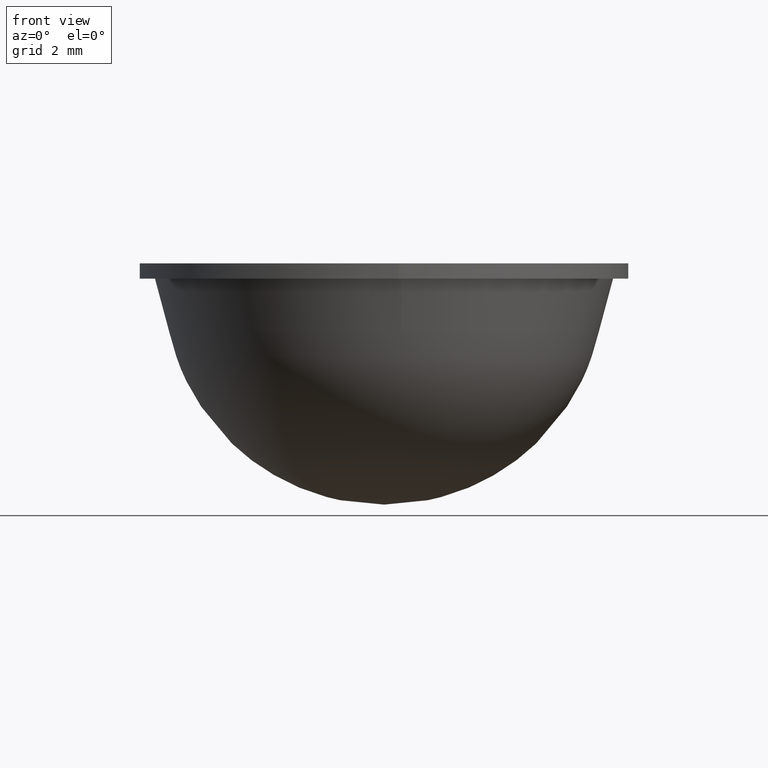
[diagram: clean part render]
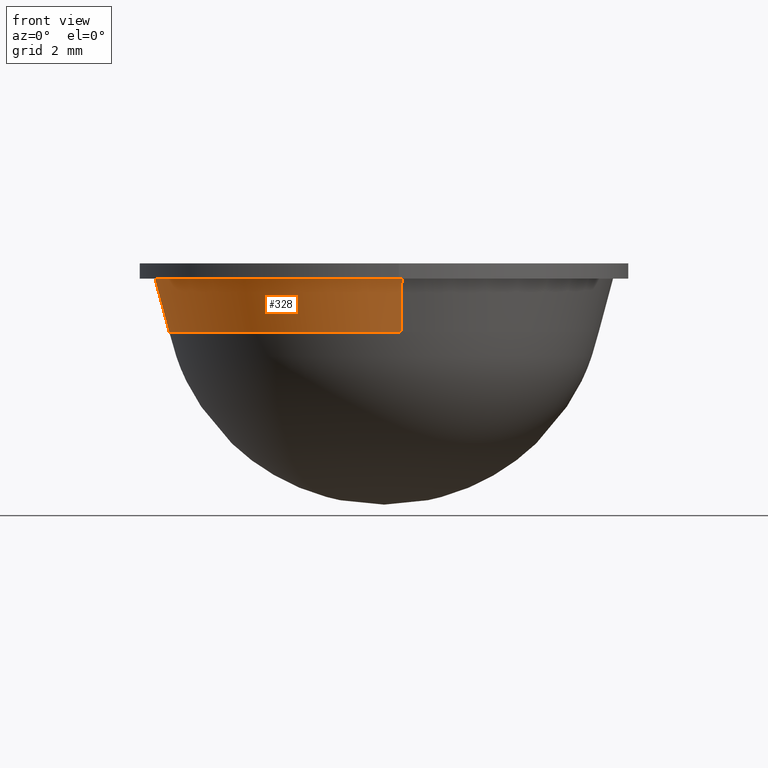
[diagram: same view with one face highlighted and labeled with its STEP entity id]
A machine part, front view. The second image highlights one B-rep face of the part: STEP entity #328.
In plain terms, the highlighted face is a freeform B-spline surface patch.
Its self-contained STEP definition (entity closure, byte-faithful):
#230=CARTESIAN_POINT('',(-0.550774565062718,6.998254387164413,5.608221417784466));
#231=CARTESIAN_POINT('',(-7.549028952227130,6.447479822101694,5.608221417784466));
#232=CARTESIAN_POINT('',(-6.998254387164413,-0.550774565062718,5.608221417784466));
#233=CARTESIAN_POINT('',(-6.447479822101694,-7.549028952227130,5.608221417784466));
#234=CARTESIAN_POINT('',(0.550774565062718,-6.998254387164413,5.608221417784466));
#235=CARTESIAN_POINT('',(-0.589384934281245,7.488845643394309,7.444794464555390));
#236=CARTESIAN_POINT('',(-8.078230577675553,6.899460709113066,7.444794464555390));
#237=CARTESIAN_POINT('',(-7.488845643394309,-0.589384934281245,7.444794464555390));
#238=CARTESIAN_POINT('',(-6.899460709113066,-8.078230577675553,7.444794464555390));
#239=CARTESIAN_POINT('',(0.589384934281245,-7.488845643394309,7.444794464555390));
#247=(BOUNDED_SURFACE()B_SPLINE_SURFACE(2,1,((#230,#235),(#231,#236),(#232,#237),(#233,#238),(#234,#239)),.UNSPECIFIED.,.F.,.F.,.U.)B_SPLINE_SURFACE_WITH_KNOTS((3,2,3),(2,2),(0.0,12.446293497161649,24.892586994323299),(0.0,1.0),.UNSPECIFIED.)GEOMETRIC_REPRESENTATION_ITEM()RATIONAL_B_SPLINE_SURFACE(((1.0,1.0),(0.707106781186548,0.707106781186548),(1.0,1.0),(0.707106781186548,0.707106781186548),(1.0,1.0)))REPRESENTATION_ITEM('')SURFACE());
#248=CARTESIAN_POINT('',(-7.500000000000000,0.0,7.400000000000000));
#249=VERTEX_POINT('',#248);
#250=CARTESIAN_POINT('',(-0.588443217960847,7.476880002998393,7.400000000000343));
#251=VERTEX_POINT('',#250);
#252=CARTESIAN_POINT('',(-7.500000000000000,0.0,7.400000000000000));
#253=CARTESIAN_POINT('',(-7.499999999999999,6.932928687432828,7.400000000000002));
#254=CARTESIAN_POINT('',(-0.588443217960847,7.476880002998393,7.400000000000344));
#262=(BOUNDED_CURVE()B_SPLINE_CURVE(2,(#252,#253,#254),.UNSPECIFIED.,.F.,.U.)B_SPLINE_CURVE_WITH_KNOTS((3,3),(0.0,0.236331300632675),.UNSPECIFIED.)CURVE()GEOMETRIC_REPRESENTATION_ITEM()RATIONAL_B_SPLINE_CURVE((1.0,0.723120658605304,0.969723356171624))REPRESENTATION_ITEM(''));
#263=EDGE_CURVE('',#249,#251,#262,.T.);
#264=ORIENTED_EDGE('',*,*,#263,.T.);
#265=CARTESIAN_POINT('',(-0.551693312700505,7.009928182672359,5.651923334424920));
#266=VERTEX_POINT('',#265);
#267=CARTESIAN_POINT('',(-0.551693312700505,7.009928182672359,5.651923334424920));
#268=CARTESIAN_POINT('',(-0.588443217960847,7.476880002998393,7.400000000000343));
#269=QUASI_UNIFORM_CURVE('',1,(#267,#268),.UNSPECIFIED.,.F.,.U.);
#270=EDGE_CURVE('',#266,#251,#269,.T.);
#271=ORIENTED_EDGE('',*,*,#270,.F.);
#272=CARTESIAN_POINT('',(-7.031604271963740,0.0,5.651923334423870));
#273=VERTEX_POINT('',#272);
#274=CARTESIAN_POINT('',(-7.031604271963740,0.0,5.651923334423870));
#275=CARTESIAN_POINT('',(-7.031604271963740,6.499948130095059,5.651923334423870));
#276=CARTESIAN_POINT('',(-0.551693312700505,7.009928182672359,5.651923334424920));
#284=(BOUNDED_CURVE()B_SPLINE_CURVE(2,(#274,#275,#276),.UNSPECIFIED.,.F.,.U.)B_SPLINE_CURVE_WITH_KNOTS((3,3),(0.0,0.236331300632466),.UNSPECIFIED.)CURVE()GEOMETRIC_REPRESENTATION_ITEM()RATIONAL_B_SPLINE_CURVE((1.0,0.723120658605550,0.969723356171187))REPRESENTATION_ITEM(''));
#285=EDGE_CURVE('',#273,#266,#284,.T.);
#286=ORIENTED_EDGE('',*,*,#285,.F.);
#287=CARTESIAN_POINT('',(0.551693312700505,-7.009928182672359,5.651923334424920));
#288=VERTEX_POINT('',#287);
#289=CARTESIAN_POINT('',(0.551693312700505,-7.009928182672359,5.651923334424920));
#290=CARTESIAN_POINT('',(0.276272484287225,-7.031604271963740,5.651923334423869));
#291=CARTESIAN_POINT('',(0.0,-7.031604271963740,5.651923334423870));
#292=CARTESIAN_POINT('',(-7.031604271963740,-7.031604271963740,5.651923334423871));
#293=CARTESIAN_POINT('',(-7.031604271963740,0.0,5.651923334423870));
#301=(BOUNDED_CURVE()B_SPLINE_CURVE(2,(#289,#290,#291,#292,#293),.UNSPECIFIED.,.F.,.U.)B_SPLINE_CURVE_WITH_KNOTS((3,2,3),(0.736331300632466,0.750000000000000,1.0),.UNSPECIFIED.)CURVE()GEOMETRIC_REPRESENTATION_ITEM()RATIONAL_B_SPLINE_CURVE((0.969723356171187,0.983986122580998,1.0,0.707106781186548,1.0))REPRESENTATION_ITEM(''));
#302=EDGE_CURVE('',#288,#273,#301,.T.);
#303=ORIENTED_EDGE('',*,*,#302,.F.);
#304=CARTESIAN_POINT('',(0.588443217960847,-7.476880002998392,7.400000000000343));
#305=VERTEX_POINT('',#304);
#306=CARTESIAN_POINT('',(0.551693312700505,-7.009928182672359,5.651923334424920));
#307=CARTESIAN_POINT('',(0.588443217960847,-7.476880002998392,7.400000000000343));
#308=QUASI_UNIFORM_CURVE('',1,(#306,#307),.UNSPECIFIED.,.F.,.U.);
#309=EDGE_CURVE('',#288,#305,#308,.T.);
#310=ORIENTED_EDGE('',*,*,#309,.T.);
#311=CARTESIAN_POINT('',(0.588443217960847,-7.476880002998392,7.400000000000343));
#312=CARTESIAN_POINT('',(0.294675802559532,-7.500000000000000,7.400000000000000));
#313=CARTESIAN_POINT('',(0.0,-7.500000000000000,7.400000000000000));
#314=CARTESIAN_POINT('',(-7.500000000000000,-7.500000000000000,7.400000000000001));
#315=CARTESIAN_POINT('',(-7.500000000000000,0.0,7.400000000000000));
#323=(BOUNDED_CURVE()B_SPLINE_CURVE(2,(#311,#312,#313,#314,#315),.UNSPECIFIED.,.F.,.U.)B_SPLINE_CURVE_WITH_KNOTS((3,2,3),(0.736331300632675,0.750000000000000,1.0),.UNSPECIFIED.)CURVE()GEOMETRIC_REPRESENTATION_ITEM()RATIONAL_B_SPLINE_CURVE((0.969723356171624,0.983986122581243,1.0,0.707106781186547,1.0))REPRESENTATION_ITEM(''));
#324=EDGE_CURVE('',#305,#249,#323,.T.);
#325=ORIENTED_EDGE('',*,*,#324,.T.);
#326=EDGE_LOOP('',(#264,#271,#286,#303,#310,#325));
#327=FACE_OUTER_BOUND('',#326,.T.);
#328=ADVANCED_FACE('',(#327),#247,.T.);